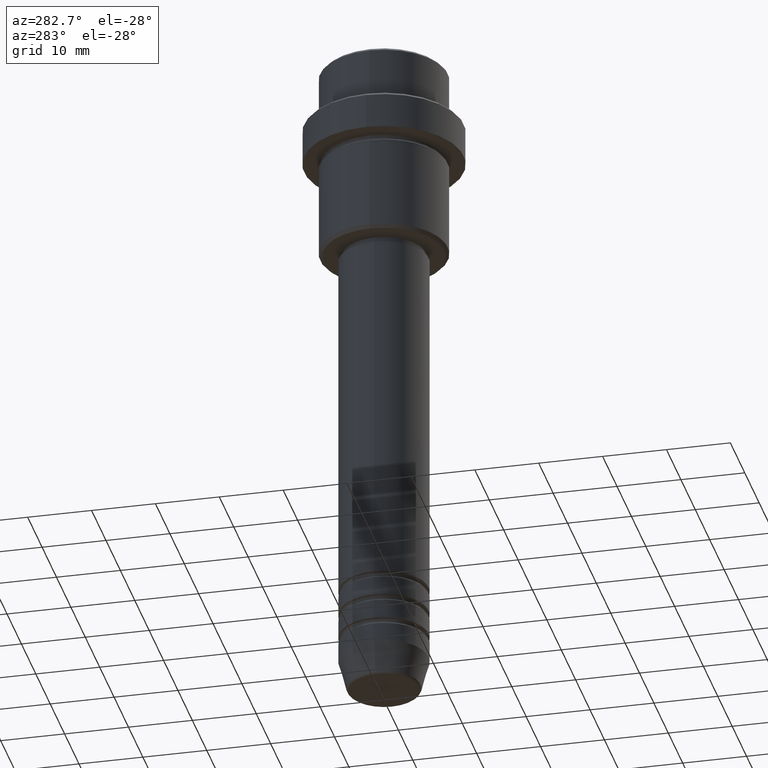
[diagram: clean part render]
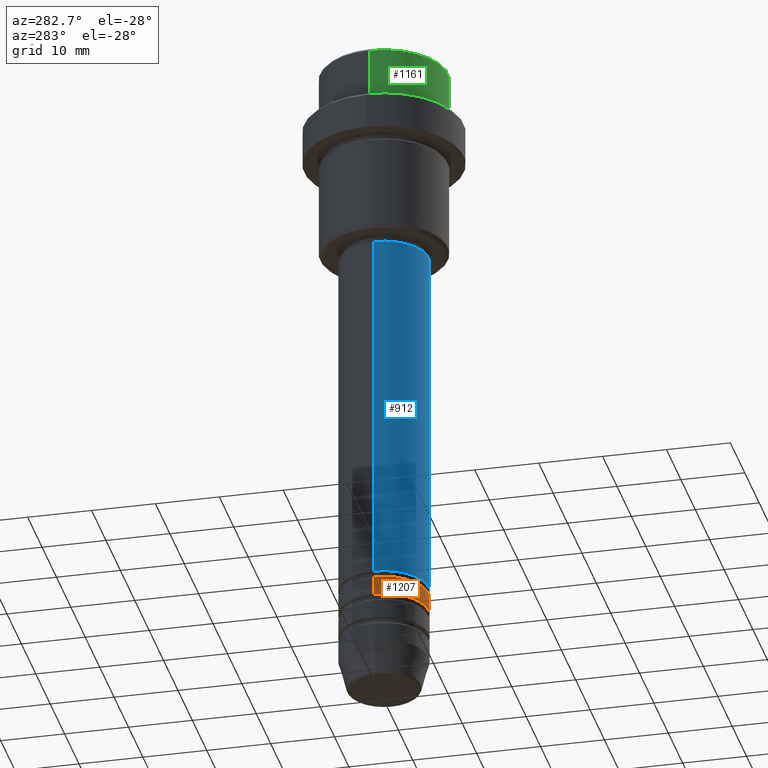
[diagram: same view with three faces highlighted in distinct colors, each labeled with its STEP entity id]
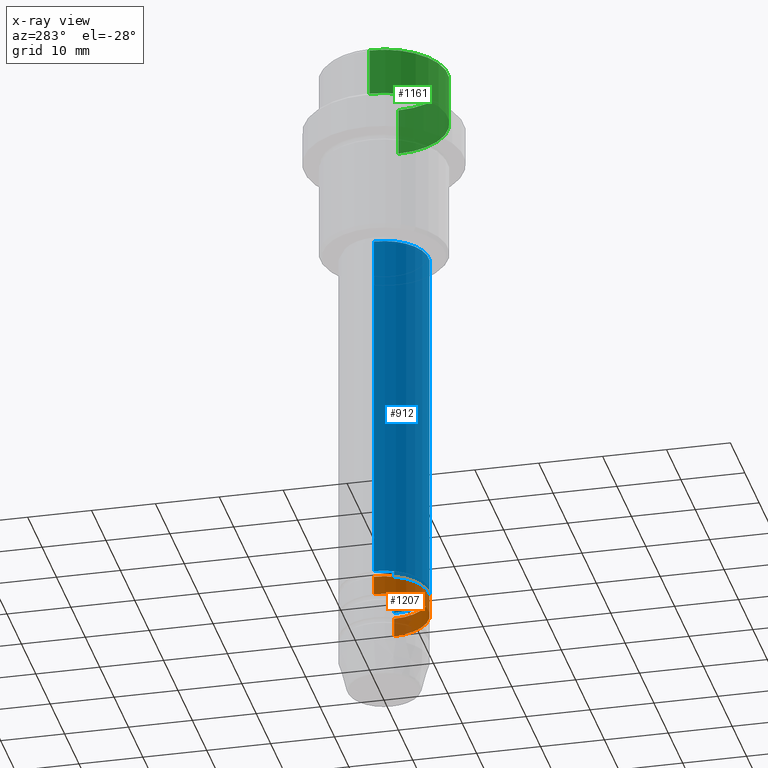
[diagram: x-ray of the same camera — body ghosted, the three highlighted faces saturated]
A machine part, auxiliary view with three faces highlighted in distinct colors.
The next image is the same camera in x-ray (body ghosted, the three faces saturated) — at least one of them is partly hidden behind the body in this view.
Their STEP definitions:

[orange] entity #1207 — the highlighted cylindrical surface (partial cylindrical patch) has radius 7 mm, axis along (-0, -0, 1).
#22 = FACE_OUTER_BOUND ( 'NONE', #120, .T. ) ;
#94 = DIRECTION ( 'NONE',  ( 1.000000000000000000, 0.000000000000000000, 0.000000000000000000 ) ) ;
#120 = EDGE_LOOP ( 'NONE', ( #1343, #787, #232, #463 ) ) ;
#171 = LINE ( 'NONE', #863, #1125 ) ;
#189 = DIRECTION ( 'NONE',  ( -0.000000000000000000, -0.000000000000000000, 1.000000000000000000 ) ) ;
#232 = ORIENTED_EDGE ( 'NONE', *, *, #271, .T. ) ;
#271 = EDGE_CURVE ( 'NONE', #1360, #635, #834, .T. ) ;
#297 = AXIS2_PLACEMENT_3D ( 'NONE', #948, #1174, #94 ) ;
#323 = EDGE_CURVE ( 'NONE', #763, #423, #171, .T. ) ;
#387 = AXIS2_PLACEMENT_3D ( 'NONE', #576, #671, #1351 ) ;
#423 = VERTEX_POINT ( 'NONE', #636 ) ;
#463 = ORIENTED_EDGE ( 'NONE', *, *, #737, .F. ) ;
#498 = CIRCLE ( 'NONE', #297, 7.000000000000000000 ) ;
#523 = CARTESIAN_POINT ( 'NONE',  ( 0.000000000000000000, 0.000000000000000000, -92.99999999999988631 ) ) ;
#576 = CARTESIAN_POINT ( 'NONE',  ( 0.000000000000000000, 0.000000000000000000, 0.000000000000000000 ) ) ;
#579 = CYLINDRICAL_SURFACE ( 'NONE', #387, 7.000000000000000000 ) ;
#622 = DIRECTION ( 'NONE',  ( 1.000000000000000000, 0.000000000000000000, 0.000000000000000000 ) ) ;
#635 = VERTEX_POINT ( 'NONE', #1314 ) ;
#636 = CARTESIAN_POINT ( 'NONE',  ( -7.000000000000000000, 8.572527594031473190E-16, -89.99999999999988631 ) ) ;
#638 = DIRECTION ( 'NONE',  ( -0.000000000000000000, -0.000000000000000000, 1.000000000000000000 ) ) ;
#671 = DIRECTION ( 'NONE',  ( -0.000000000000000000, -0.000000000000000000, 1.000000000000000000 ) ) ;
#695 = DIRECTION ( 'NONE',  ( -0.000000000000000000, -0.000000000000000000, 1.000000000000000000 ) ) ;
#737 = EDGE_CURVE ( 'NONE', #423, #635, #498, .T. ) ;
#739 = EDGE_CURVE ( 'NONE', #763, #1360, #1308, .T. ) ;
#763 = VERTEX_POINT ( 'NONE', #1112 ) ;
#787 = ORIENTED_EDGE ( 'NONE', *, *, #739, .T. ) ;
#834 = LINE ( 'NONE', #1046, #842 ) ;
#842 = VECTOR ( 'NONE', #695, 1000.000000000000000 ) ;
#863 = CARTESIAN_POINT ( 'NONE',  ( -7.000000000000000000, 8.572527594031473190E-16, 0.000000000000000000 ) ) ;
#948 = CARTESIAN_POINT ( 'NONE',  ( 0.000000000000000000, 0.000000000000000000, -89.99999999999988631 ) ) ;
#1046 = CARTESIAN_POINT ( 'NONE',  ( 7.000000000000000000, 0.000000000000000000, 0.000000000000000000 ) ) ;
#1074 = AXIS2_PLACEMENT_3D ( 'NONE', #523, #189, #622 ) ;
#1112 = CARTESIAN_POINT ( 'NONE',  ( -7.000000000000000000, 8.572527594031473190E-16, -92.99999999999988631 ) ) ;
#1125 = VECTOR ( 'NONE', #638, 1000.000000000000000 ) ;
#1144 = CARTESIAN_POINT ( 'NONE',  ( 7.000000000000000000, 0.000000000000000000, -92.99999999999988631 ) ) ;
#1174 = DIRECTION ( 'NONE',  ( -0.000000000000000000, -0.000000000000000000, 1.000000000000000000 ) ) ;
#1207 = ADVANCED_FACE ( 'NONE', ( #22 ), #579, .T. ) ;
#1308 = CIRCLE ( 'NONE', #1074, 7.000000000000000000 ) ;
#1314 = CARTESIAN_POINT ( 'NONE',  ( 7.000000000000000000, 0.000000000000000000, -89.99999999999988631 ) ) ;
#1343 = ORIENTED_EDGE ( 'NONE', *, *, #323, .F. ) ;
#1351 = DIRECTION ( 'NONE',  ( 1.000000000000000000, 0.000000000000000000, 0.000000000000000000 ) ) ;
#1360 = VERTEX_POINT ( 'NONE', #1144 ) ;

[blue] entity #912 — the highlighted cylindrical surface (partial cylindrical patch) has radius 7 mm, axis along (-0, -0, 1).
#6 = DIRECTION ( 'NONE',  ( 1.000000000000000000, 0.000000000000000000, 0.000000000000000000 ) ) ;
#15 = EDGE_CURVE ( 'NONE', #1199, #1013, #270, .T. ) ;
#16 = VECTOR ( 'NONE', #1249, 1000.000000000000000 ) ;
#116 = DIRECTION ( 'NONE',  ( -0.000000000000000000, -0.000000000000000000, 1.000000000000000000 ) ) ;
#139 = CARTESIAN_POINT ( 'NONE',  ( -7.000000000000000000, 8.572527594031473190E-16, -88.99999999999988631 ) ) ;
#217 = CARTESIAN_POINT ( 'NONE',  ( 0.000000000000000000, 0.000000000000000000, 0.000000000000000000 ) ) ;
#257 = VERTEX_POINT ( 'NONE', #810 ) ;
#270 = LINE ( 'NONE', #910, #16 ) ;
#304 = ORIENTED_EDGE ( 'NONE', *, *, #1059, .F. ) ;
#317 = AXIS2_PLACEMENT_3D ( 'NONE', #908, #1346, #800 ) ;
#330 = CARTESIAN_POINT ( 'NONE',  ( 0.000000000000000000, 0.000000000000000000, -31.99999999999997868 ) ) ;
#401 = EDGE_CURVE ( 'NONE', #1199, #257, #845, .T. ) ;
#429 = AXIS2_PLACEMENT_3D ( 'NONE', #330, #762, #1309 ) ;
#578 = ORIENTED_EDGE ( 'NONE', *, *, #958, .T. ) ;
#616 = DIRECTION ( 'NONE',  ( -0.000000000000000000, -0.000000000000000000, 1.000000000000000000 ) ) ;
#709 = CIRCLE ( 'NONE', #429, 7.000000000000000000 ) ;
#741 = LINE ( 'NONE', #1060, #938 ) ;
#760 = EDGE_LOOP ( 'NONE', ( #1104, #1230, #578, #304 ) ) ;
#761 = FACE_OUTER_BOUND ( 'NONE', #760, .T. ) ;
#762 = DIRECTION ( 'NONE',  ( -0.000000000000000000, -0.000000000000000000, 1.000000000000000000 ) ) ;
#800 = DIRECTION ( 'NONE',  ( 1.000000000000000000, 0.000000000000000000, 0.000000000000000000 ) ) ;
#810 = CARTESIAN_POINT ( 'NONE',  ( 7.000000000000000000, 0.000000000000000000, -88.99999999999988631 ) ) ;
#845 = CIRCLE ( 'NONE', #317, 7.000000000000000000 ) ;
#908 = CARTESIAN_POINT ( 'NONE',  ( 0.000000000000000000, 0.000000000000000000, -88.99999999999988631 ) ) ;
#910 = CARTESIAN_POINT ( 'NONE',  ( -7.000000000000000000, 8.572527594031473190E-16, 0.000000000000000000 ) ) ;
#912 = ADVANCED_FACE ( 'NONE', ( #761 ), #1200, .T. ) ;
#938 = VECTOR ( 'NONE', #616, 1000.000000000000000 ) ;
#956 = CARTESIAN_POINT ( 'NONE',  ( -7.000000000000000000, 8.572527594031473190E-16, -31.99999999999997868 ) ) ;
#958 = EDGE_CURVE ( 'NONE', #257, #1055, #741, .T. ) ;
#979 = CARTESIAN_POINT ( 'NONE',  ( 7.000000000000000000, 0.000000000000000000, -31.99999999999997868 ) ) ;
#1013 = VERTEX_POINT ( 'NONE', #956 ) ;
#1055 = VERTEX_POINT ( 'NONE', #979 ) ;
#1059 = EDGE_CURVE ( 'NONE', #1013, #1055, #709, .T. ) ;
#1060 = CARTESIAN_POINT ( 'NONE',  ( 7.000000000000000000, 0.000000000000000000, 0.000000000000000000 ) ) ;
#1104 = ORIENTED_EDGE ( 'NONE', *, *, #15, .F. ) ;
#1142 = AXIS2_PLACEMENT_3D ( 'NONE', #217, #116, #6 ) ;
#1199 = VERTEX_POINT ( 'NONE', #139 ) ;
#1200 = CYLINDRICAL_SURFACE ( 'NONE', #1142, 7.000000000000000000 ) ;
#1230 = ORIENTED_EDGE ( 'NONE', *, *, #401, .T. ) ;
#1249 = DIRECTION ( 'NONE',  ( -0.000000000000000000, -0.000000000000000000, 1.000000000000000000 ) ) ;
#1309 = DIRECTION ( 'NONE',  ( 1.000000000000000000, 0.000000000000000000, 0.000000000000000000 ) ) ;
#1346 = DIRECTION ( 'NONE',  ( -0.000000000000000000, -0.000000000000000000, 1.000000000000000000 ) ) ;

[green] entity #1161 — the highlighted cylindrical surface (partial cylindrical patch) has radius 10 mm, axis along (-0, -0, 1).
#13 = CARTESIAN_POINT ( 'NONE',  ( 0.000000000000000000, 0.000000000000000000, 0.000000000000000000 ) ) ;
#21 = CIRCLE ( 'NONE', #84, 9.999999999999998224 ) ;
#44 = EDGE_CURVE ( 'NONE', #726, #549, #150, .T. ) ;
#81 = EDGE_CURVE ( 'NONE', #726, #234, #107, .T. ) ;
#84 = AXIS2_PLACEMENT_3D ( 'NONE', #1039, #373, #696 ) ;
#107 = CIRCLE ( 'NONE', #495, 9.999999999999998224 ) ;
#117 = LINE ( 'NONE', #646, #611 ) ;
#145 = CARTESIAN_POINT ( 'NONE',  ( -9.999999999999998224, 1.224646799147353059E-15, -7.999999999999998224 ) ) ;
#150 = LINE ( 'NONE', #477, #1182 ) ;
#182 = ORIENTED_EDGE ( 'NONE', *, *, #615, .T. ) ;
#228 = CARTESIAN_POINT ( 'NONE',  ( 9.999999999999998224, 0.000000000000000000, -0.5000000000000247580 ) ) ;
#234 = VERTEX_POINT ( 'NONE', #1239 ) ;
#373 = DIRECTION ( 'NONE',  ( 0.000000000000000000, 0.000000000000000000, -1.000000000000000000 ) ) ;
#404 = DIRECTION ( 'NONE',  ( -0.000000000000000000, -0.000000000000000000, 1.000000000000000000 ) ) ;
#450 = CYLINDRICAL_SURFACE ( 'NONE', #509, 9.999999999999998224 ) ;
#477 = CARTESIAN_POINT ( 'NONE',  ( -9.999999999999998224, 1.224646799147353059E-15, 0.000000000000000000 ) ) ;
#495 = AXIS2_PLACEMENT_3D ( 'NONE', #943, #404, #735 ) ;
#509 = AXIS2_PLACEMENT_3D ( 'NONE', #13, #911, #1219 ) ;
#549 = VERTEX_POINT ( 'NONE', #1329 ) ;
#570 = FACE_OUTER_BOUND ( 'NONE', #1147, .T. ) ;
#611 = VECTOR ( 'NONE', #1197, 1000.000000000000000 ) ;
#615 = EDGE_CURVE ( 'NONE', #802, #549, #21, .T. ) ;
#646 = CARTESIAN_POINT ( 'NONE',  ( 9.999999999999998224, 0.000000000000000000, 0.000000000000000000 ) ) ;
#696 = DIRECTION ( 'NONE',  ( 1.000000000000000000, 0.000000000000000000, 0.000000000000000000 ) ) ;
#726 = VERTEX_POINT ( 'NONE', #145 ) ;
#735 = DIRECTION ( 'NONE',  ( 1.000000000000000000, 0.000000000000000000, 0.000000000000000000 ) ) ;
#802 = VERTEX_POINT ( 'NONE', #228 ) ;
#911 = DIRECTION ( 'NONE',  ( -0.000000000000000000, -0.000000000000000000, 1.000000000000000000 ) ) ;
#919 = DIRECTION ( 'NONE',  ( -0.000000000000000000, -0.000000000000000000, 1.000000000000000000 ) ) ;
#943 = CARTESIAN_POINT ( 'NONE',  ( 0.000000000000000000, 0.000000000000000000, -7.999999999999998224 ) ) ;
#995 = EDGE_CURVE ( 'NONE', #234, #802, #117, .T. ) ;
#1039 = CARTESIAN_POINT ( 'NONE',  ( 0.000000000000000000, 0.000000000000000000, -0.5000000000000247580 ) ) ;
#1119 = ORIENTED_EDGE ( 'NONE', *, *, #44, .F. ) ;
#1130 = ORIENTED_EDGE ( 'NONE', *, *, #995, .T. ) ;
#1147 = EDGE_LOOP ( 'NONE', ( #1119, #1278, #1130, #182 ) ) ;
#1161 = ADVANCED_FACE ( 'NONE', ( #570 ), #450, .T. ) ;
#1182 = VECTOR ( 'NONE', #919, 1000.000000000000000 ) ;
#1197 = DIRECTION ( 'NONE',  ( -0.000000000000000000, -0.000000000000000000, 1.000000000000000000 ) ) ;
#1219 = DIRECTION ( 'NONE',  ( 1.000000000000000000, 0.000000000000000000, 0.000000000000000000 ) ) ;
#1239 = CARTESIAN_POINT ( 'NONE',  ( 9.999999999999998224, 0.000000000000000000, -7.999999999999998224 ) ) ;
#1278 = ORIENTED_EDGE ( 'NONE', *, *, #81, .T. ) ;
#1329 = CARTESIAN_POINT ( 'NONE',  ( -9.999999999999998224, 1.224646799147353059E-15, -0.5000000000000247580 ) ) ;